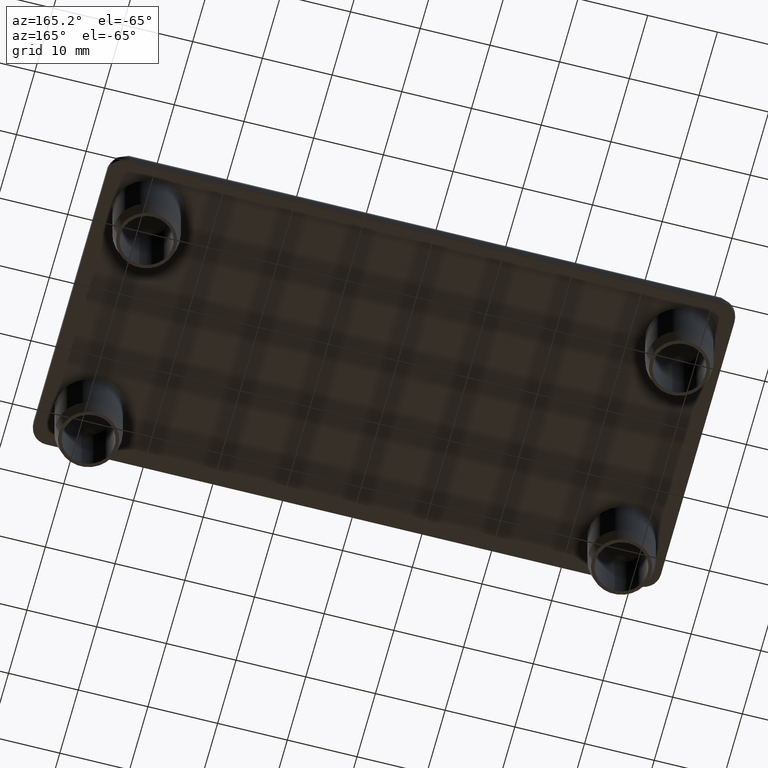
[diagram: clean part render]
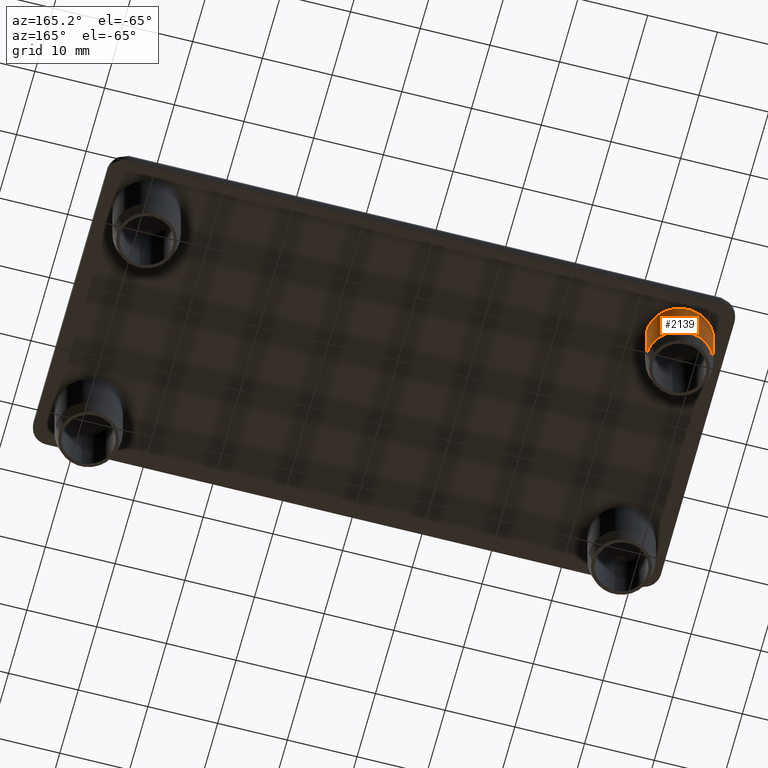
[diagram: same view with one face highlighted and labeled with its STEP entity id]
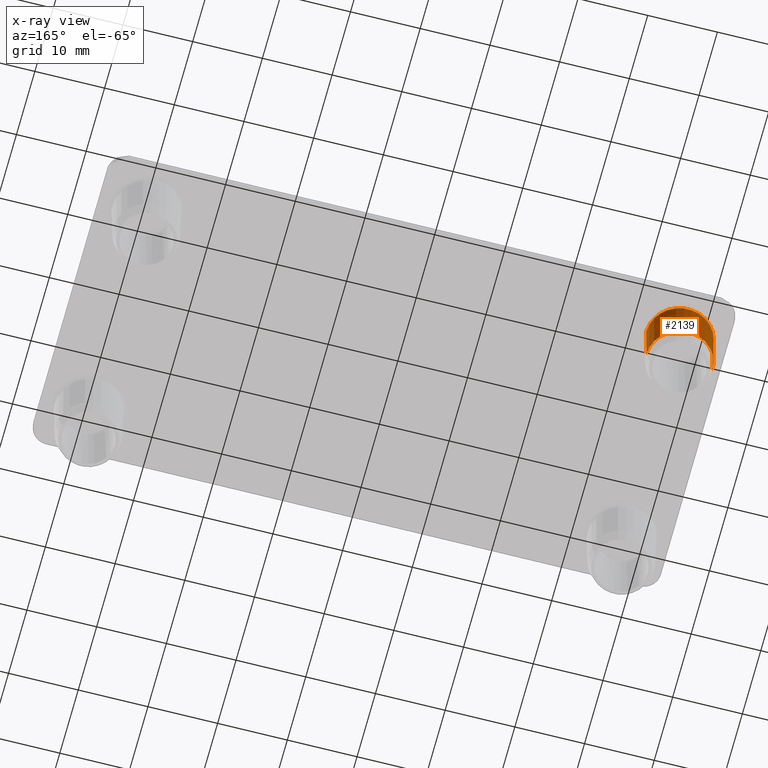
[diagram: x-ray of the same camera — body ghosted, the highlighted face saturated]
A machine part, auxiliary view. The second image highlights one B-rep face of the part: STEP entity #2139.
The next image is the same camera in x-ray: the body ghosted, the highlighted face saturated — about 0% of this face is hidden behind the body in this view.
In plain terms, the highlighted cylindrical surface (edge-blend (fillet) strip) has radius 4.75 mm, axis along (0, 0, 1).
Its self-contained STEP definition (entity closure, byte-faithful):
#1023=CARTESIAN_POINT('',(-42.980000000000011,38.229999999999997,-0.500000000000004));
#1024=VERTEX_POINT('',#1023);
#1025=CARTESIAN_POINT('',(-33.479999999999997,38.229999999999997,-0.500000000000004));
#1026=VERTEX_POINT('',#1025);
#1027=CARTESIAN_POINT('',(-38.230000000000011,38.229999999999997,-0.500000000000004));
#1028=DIRECTION('',(0.0,-1.224647E-016,-1.0));
#1029=DIRECTION('',(1.0,0.0,0.0));
#1030=AXIS2_PLACEMENT_3D('',#1027,#1028,#1029);
#1031=CIRCLE('',#1030,4.750000000000005);
#1032=EDGE_CURVE('',#1024,#1026,#1031,.T.);
#1244=CARTESIAN_POINT('',(-33.479999999999997,38.229999999999997,-8.000000000000004));
#1245=VERTEX_POINT('',#1244);
#1252=CARTESIAN_POINT('',(-42.980000000000011,38.229999999999997,-8.000000000000004));
#1253=VERTEX_POINT('',#1252);
#1304=CARTESIAN_POINT('',(-33.479999999999997,38.229999999999997,-8.000000000000004));
#1305=DIRECTION('',(0.0,0.0,1.0));
#1306=VECTOR('',#1305,7.500000000000000);
#1307=LINE('',#1304,#1306);
#1308=EDGE_CURVE('',#1245,#1026,#1307,.T.);
#1317=CARTESIAN_POINT('',(-42.980000000000011,38.229999999999997,-8.000000000000004));
#1318=DIRECTION('',(0.0,0.0,1.0));
#1319=VECTOR('',#1318,7.500000000000000);
#1320=LINE('',#1317,#1319);
#1321=EDGE_CURVE('',#1253,#1024,#1320,.T.);
#2122=CARTESIAN_POINT('',(-38.230000000000011,38.229999999999990,-8.000000010000004));
#2123=DIRECTION('',(0.0,1.224647E-016,1.0));
#2124=DIRECTION('',(0.0,-1.0,1.224647E-016));
#2125=AXIS2_PLACEMENT_3D('',#2122,#2123,#2124);
#2126=CYLINDRICAL_SURFACE('',#2125,4.750000000000005);
#2127=ORIENTED_EDGE('',*,*,#1308,.F.);
#2128=CARTESIAN_POINT('',(-38.230000000000011,38.229999999999997,-8.000000000000004));
#2129=DIRECTION('',(0.0,1.224647E-016,1.0));
#2130=DIRECTION('',(-1.0,0.0,0.0));
#2131=AXIS2_PLACEMENT_3D('',#2128,#2129,#2130);
#2132=CIRCLE('',#2131,4.750000000000005);
#2133=EDGE_CURVE('',#1245,#1253,#2132,.T.);
#2134=ORIENTED_EDGE('',*,*,#2133,.T.);
#2135=ORIENTED_EDGE('',*,*,#1321,.T.);
#2136=ORIENTED_EDGE('',*,*,#1032,.T.);
#2137=EDGE_LOOP('',(#2127,#2134,#2135,#2136));
#2138=FACE_OUTER_BOUND('',#2137,.T.);
#2139=ADVANCED_FACE('',(#2138),#2126,.T.);